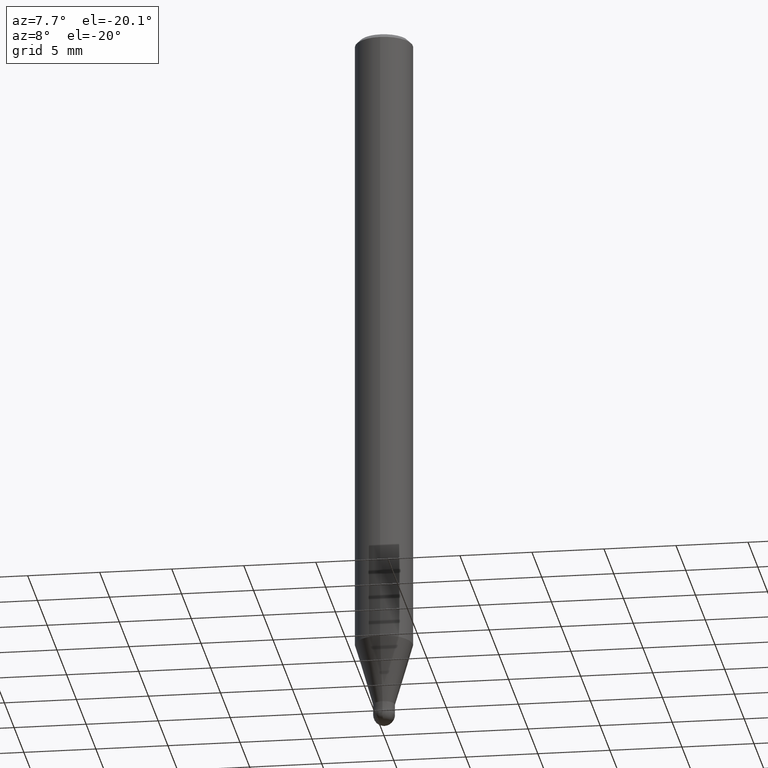
[diagram: clean part render]
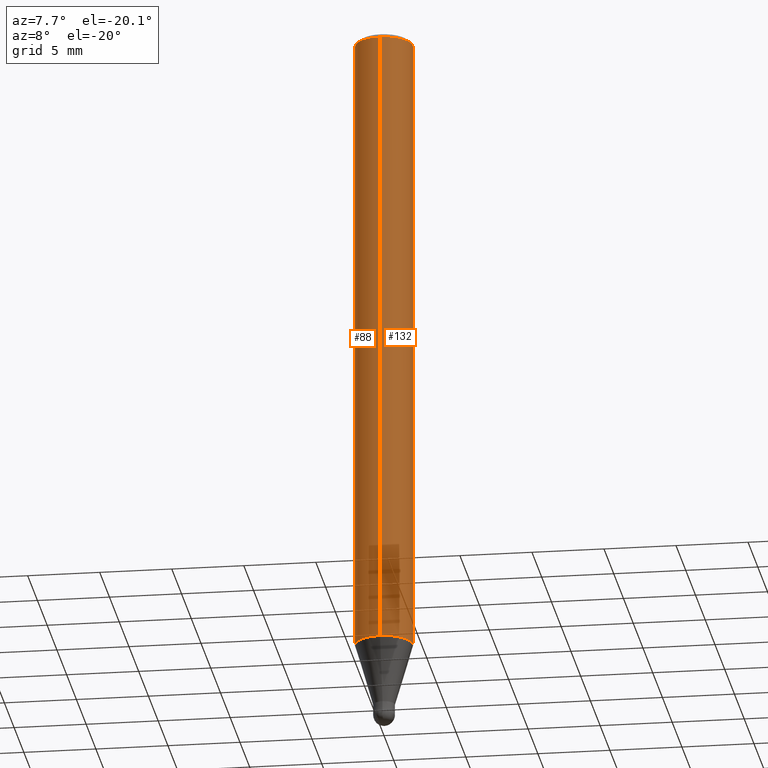
[diagram: same view with one multi-face feature highlighted, each face labeled with its STEP entity id]
A machine part, auxiliary view. The highlighted faces form ONE feature: a constant-radius fillet chain: 2 tangent blend faces with common blend radius 2 mm. The faces share edges in the B-rep.
Their STEP definitions:
[1] entity #88 (Cylinder):
#86=EDGE_CURVE('',#126,#156,#211,.T.);
#88=ADVANCED_FACE('',(#213),#214,.T.);
#110=EDGE_CURVE('',#130,#158,#239,.T.);
#126=VERTEX_POINT('',#256);
#130=VERTEX_POINT('',#260);
#146=EDGE_CURVE('',#130,#126,#279,.T.);
#156=VERTEX_POINT('',#290);
#158=VERTEX_POINT('',#292);
#180=EDGE_CURVE('',#156,#158,#318,.T.);
#211=CIRCLE('',#344,2.0);
#213=FACE_OUTER_BOUND('',#346,.T.);
#214=CYLINDRICAL_SURFACE('',#347,2.0);
#239=CIRCLE('',#381,2.0);
#256=CARTESIAN_POINT('',(2.44921270764475E-016,-2.0,-0.299999999999997));
#260=CARTESIAN_POINT('',(2.44921270764475E-016,-2.0,-44.141));
#279=LINE('',#431,#432);
#290=CARTESIAN_POINT('',(0.0,2.0,-0.299999999999997));
#292=CARTESIAN_POINT('',(0.0,2.0,-44.141));
#318=LINE('',#476,#477);
#344=AXIS2_PLACEMENT_3D('',#493,#494,#495);
#346=EDGE_LOOP('',(#497,#498,#499,#500));
#347=AXIS2_PLACEMENT_3D('',#501,#502,#503);
#381=AXIS2_PLACEMENT_3D('',#538,#539,#540);
#431=CARTESIAN_POINT('',(2.44921270764475E-016,-2.0,-22.2205));
#432=VECTOR('',#585,1.0);
#476=CARTESIAN_POINT('',(-2.44921270764475E-016,2.0,-22.2205));
#477=VECTOR('',#635,1.0);
#493=CARTESIAN_POINT('',(0.0,0.0,-0.299999999999997));
#494=DIRECTION('',(0.0,0.0,-1.0));
#495=DIRECTION('',(0.0,1.0,0.0));
#497=ORIENTED_EDGE('',*,*,#180,.T.);
#498=ORIENTED_EDGE('',*,*,#110,.F.);
#499=ORIENTED_EDGE('',*,*,#146,.T.);
#500=ORIENTED_EDGE('',*,*,#86,.T.);
#501=CARTESIAN_POINT('',(0.0,0.0,-22.2205));
#502=DIRECTION('',(-0.0,-0.0,1.0));
#503=DIRECTION('',(0.0,1.0,0.0));
#538=CARTESIAN_POINT('',(0.0,0.0,-44.141));
#539=DIRECTION('',(0.0,0.0,-1.0));
#540=DIRECTION('',(0.0,1.0,0.0));
#585=DIRECTION('',(-0.0,-0.0,1.0));
#635=DIRECTION('',(0.0,0.0,-1.0));
[2] entity #132 (Cylinder):
#118=EDGE_CURVE('',#158,#130,#248,.T.);
#126=VERTEX_POINT('',#256);
#130=VERTEX_POINT('',#260);
#132=ADVANCED_FACE('',(#262),#263,.T.);
#146=EDGE_CURVE('',#130,#126,#279,.T.);
#156=VERTEX_POINT('',#290);
#158=VERTEX_POINT('',#292);
#160=EDGE_CURVE('',#156,#126,#294,.T.);
#180=EDGE_CURVE('',#156,#158,#318,.T.);
#248=CIRCLE('',#394,2.0);
#256=CARTESIAN_POINT('',(2.44921270764475E-016,-2.0,-0.299999999999997));
#260=CARTESIAN_POINT('',(2.44921270764475E-016,-2.0,-44.141));
#262=FACE_OUTER_BOUND('',#411,.T.);
#263=CYLINDRICAL_SURFACE('',#412,2.0);
#279=LINE('',#431,#432);
#290=CARTESIAN_POINT('',(0.0,2.0,-0.299999999999997));
#292=CARTESIAN_POINT('',(0.0,2.0,-44.141));
#294=CIRCLE('',#449,2.0);
#318=LINE('',#476,#477);
#394=AXIS2_PLACEMENT_3D('',#551,#552,#553);
#411=EDGE_LOOP('',(#559,#560,#561,#562));
#412=AXIS2_PLACEMENT_3D('',#563,#564,#565);
#431=CARTESIAN_POINT('',(2.44921270764475E-016,-2.0,-22.2205));
#432=VECTOR('',#585,1.0);
#449=AXIS2_PLACEMENT_3D('',#597,#598,#599);
#476=CARTESIAN_POINT('',(-2.44921270764475E-016,2.0,-22.2205));
#477=VECTOR('',#635,1.0);
#551=CARTESIAN_POINT('',(0.0,0.0,-44.141));
#552=DIRECTION('',(0.0,0.0,-1.0));
#553=DIRECTION('',(0.0,1.0,0.0));
#559=ORIENTED_EDGE('',*,*,#180,.F.);
#560=ORIENTED_EDGE('',*,*,#160,.T.);
#561=ORIENTED_EDGE('',*,*,#146,.F.);
#562=ORIENTED_EDGE('',*,*,#118,.F.);
#563=CARTESIAN_POINT('',(0.0,0.0,-22.2205));
#564=DIRECTION('',(-0.0,-0.0,1.0));
#565=DIRECTION('',(0.0,1.0,0.0));
#585=DIRECTION('',(-0.0,-0.0,1.0));
#597=CARTESIAN_POINT('',(0.0,0.0,-0.299999999999997));
#598=DIRECTION('',(0.0,0.0,-1.0));
#599=DIRECTION('',(0.0,1.0,0.0));
#635=DIRECTION('',(0.0,0.0,-1.0));